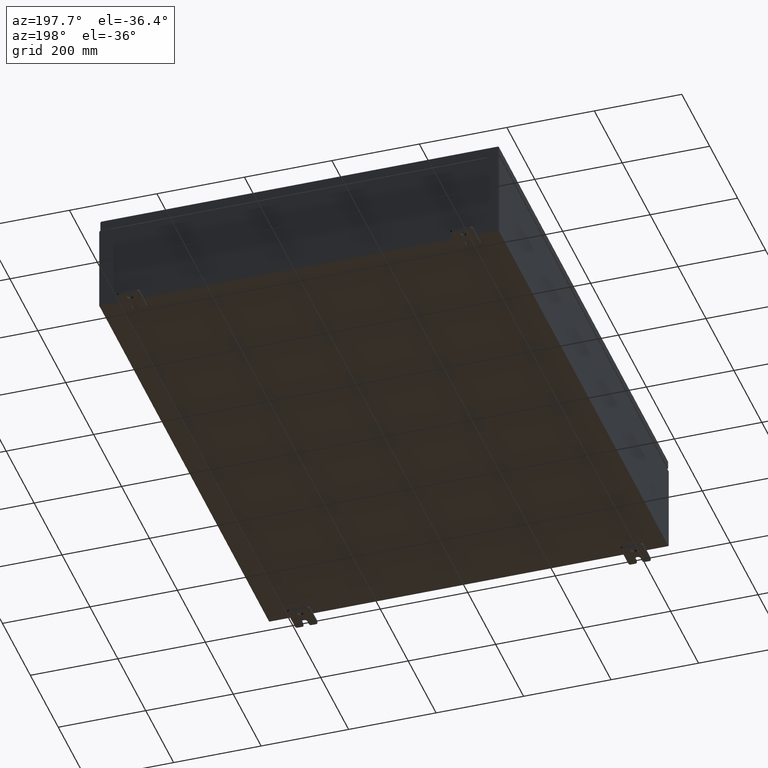
[diagram: clean part render]
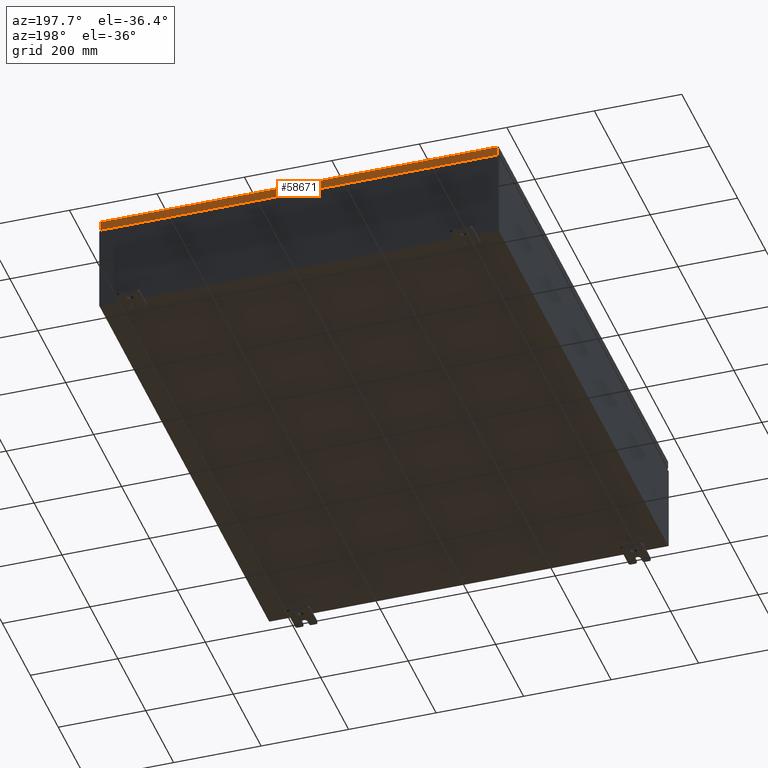
[diagram: same view with one face highlighted and labeled with its STEP entity id]
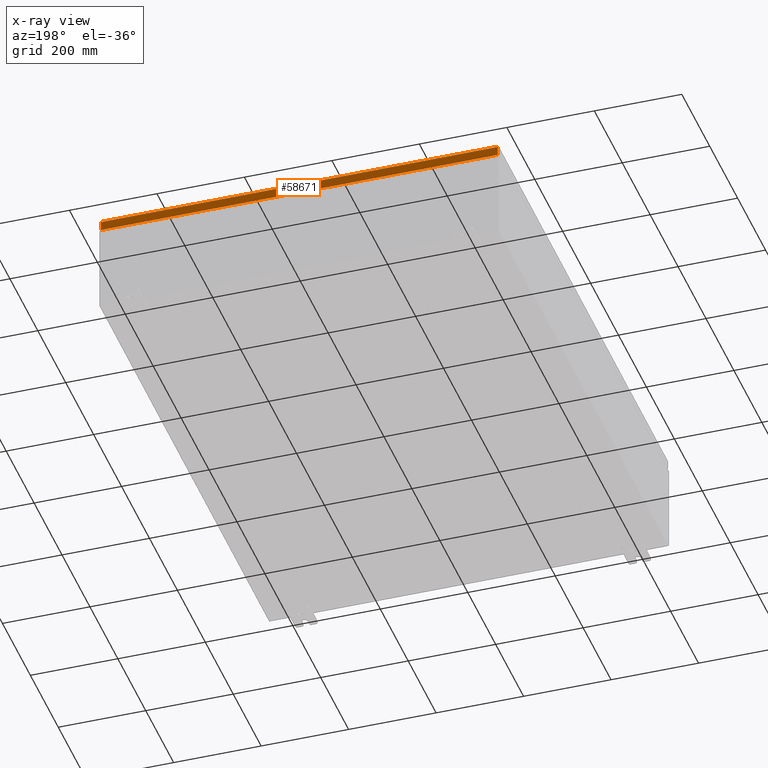
[diagram: x-ray of the same camera — body ghosted, the highlighted face saturated]
A machine part, auxiliary view. The second image highlights one B-rep face of the part: STEP entity #58671.
The next image is the same camera in x-ray: the body ghosted, the highlighted face saturated — about 0% of this face is hidden behind the body in this view.
In plain terms, the highlighted planar face has unit normal (0, -1, -0).
Its self-contained STEP definition (entity closure, byte-faithful):
#707 = ORIENTED_EDGE ( 'NONE', *, *, #5817, .T. ) ;
#2388 = EDGE_CURVE ( 'NONE', #35347, #8836, #45832, .T. ) ;
#5517 = VERTEX_POINT ( 'NONE', #17303 ) ;
#5817 = EDGE_CURVE ( 'NONE', #5517, #8836, #41411, .T. ) ;
#6361 = EDGE_LOOP ( 'NONE', ( #34904, #707, #43405, #12159 ) ) ;
#8836 = VERTEX_POINT ( 'NONE', #42130 ) ;
#9458 = DIRECTION ( 'NONE',  ( -0.0000000000000000000, 5.064839849203706900E-015, -1.000000000000000000 ) ) ;
#10060 = VECTOR ( 'NONE', #9458, 39.37007874015748100 ) ;
#10888 = DIRECTION ( 'NONE',  ( 6.170925750089124300E-031, -1.000000000000000000, -5.064839849203706900E-015 ) ) ;
#12159 = ORIENTED_EDGE ( 'NONE', *, *, #28358, .F. ) ;
#12769 = EDGE_CURVE ( 'NONE', #5517, #53647, #26894, .T. ) ;
#15348 = CARTESIAN_POINT ( 'NONE',  ( -17.84865786437626100, 23.93750000000000700, -0.9377000000000042000 ) ) ;
#15350 = CARTESIAN_POINT ( 'NONE',  ( -17.93749999999999600, 23.93750000000000400, -0.08769999999999550400 ) ) ;
#17303 = CARTESIAN_POINT ( 'NONE',  ( 17.84865786437627100, 23.93750000000000400, -0.08769999999999550400 ) ) ;
#18130 = AXIS2_PLACEMENT_3D ( 'NONE', #37315, #10888, #47999 ) ;
#20440 = DIRECTION ( 'NONE',  ( -1.000000000000000000, -6.170925750089125200E-031, -3.189293793798670500E-045 ) ) ;
#20783 = CARTESIAN_POINT ( 'NONE',  ( -17.84865786437626100, 23.93750000000000400, -0.08769999999999550400 ) ) ;
#21057 = PLANE ( 'NONE',  #18130 ) ;
#25348 = DIRECTION ( 'NONE',  ( 0.0000000000000000000, 5.064839849203706900E-015, -1.000000000000000000 ) ) ;
#26894 = LINE ( 'NONE', #15350, #53521 ) ;
#28358 = EDGE_CURVE ( 'NONE', #53647, #35347, #63261, .T. ) ;
#31697 = VECTOR ( 'NONE', #36013, 39.37007874015748100 ) ;
#34904 = ORIENTED_EDGE ( 'NONE', *, *, #12769, .F. ) ;
#35347 = VERTEX_POINT ( 'NONE', #15348 ) ;
#36013 = DIRECTION ( 'NONE',  ( 1.000000000000000000, 8.758115402030108600E-047, 1.218385167906012900E-016 ) ) ;
#37315 = CARTESIAN_POINT ( 'NONE',  ( -1.477165351427584500E-029, 23.93750000000000400, 1.215004175463253400E-013 ) ) ;
#41239 = CARTESIAN_POINT ( 'NONE',  ( -17.84865786437626100, 23.93750000000000400, -0.07469999999999962800 ) ) ;
#41411 = LINE ( 'NONE', #57248, #55624 ) ;
#42130 = CARTESIAN_POINT ( 'NONE',  ( 17.84865786437627100, 23.93750000000000700, -0.9376999999999997600 ) ) ;
#43405 = ORIENTED_EDGE ( 'NONE', *, *, #2388, .F. ) ;
#44116 = FACE_OUTER_BOUND ( 'NONE', #6361, .T. ) ;
#44337 = CARTESIAN_POINT ( 'NONE',  ( -17.93749999999999600, 23.93750000000000700, -0.9377000000000042000 ) ) ;
#45832 = LINE ( 'NONE', #44337, #31697 ) ;
#47999 = DIRECTION ( 'NONE',  ( 0.0000000000000000000, 5.064839849203706900E-015, -1.000000000000000000 ) ) ;
#53521 = VECTOR ( 'NONE', #20440, 39.37007874015748100 ) ;
#53647 = VERTEX_POINT ( 'NONE', #20783 ) ;
#55624 = VECTOR ( 'NONE', #25348, 39.37007874015748100 ) ;
#57248 = CARTESIAN_POINT ( 'NONE',  ( 17.84865786437627500, 23.93750000000000400, 1.215004175463253400E-013 ) ) ;
#58671 = ADVANCED_FACE ( 'NONE', ( #44116 ), #21057, .F. ) ;
#63261 = LINE ( 'NONE', #41239, #10060 ) ;